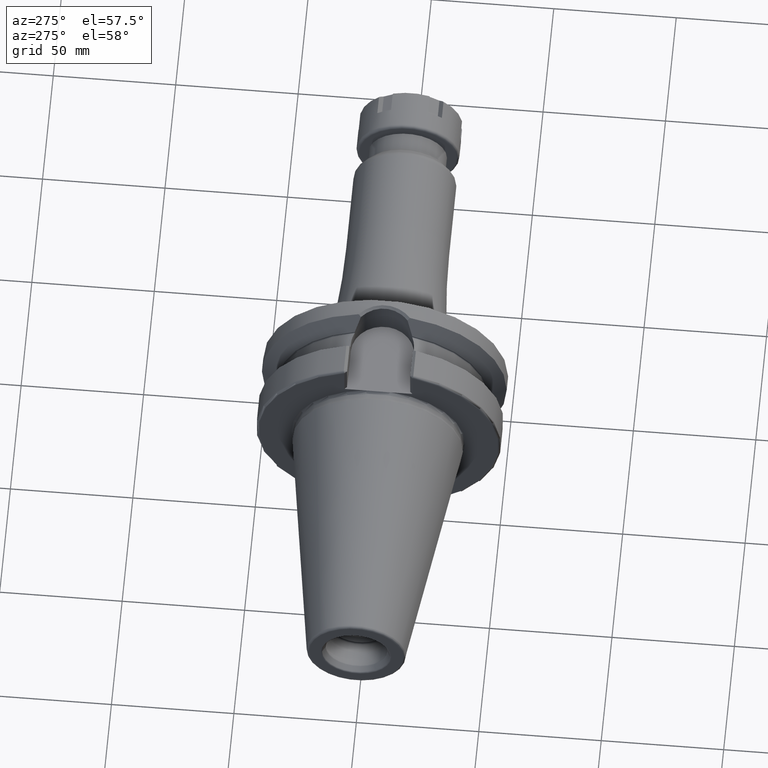
[diagram: clean part render]
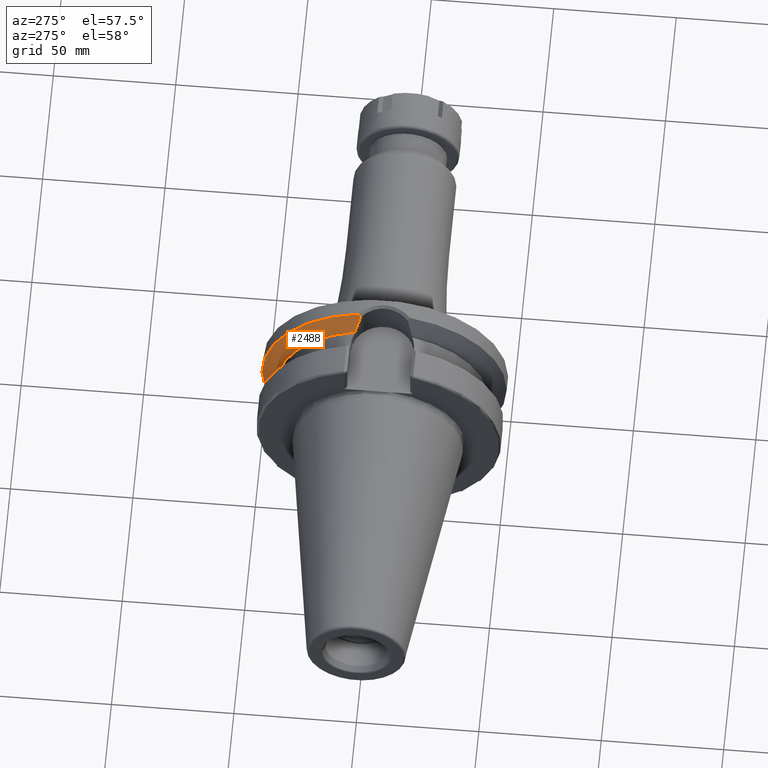
[diagram: same view with one face highlighted and labeled with its STEP entity id]
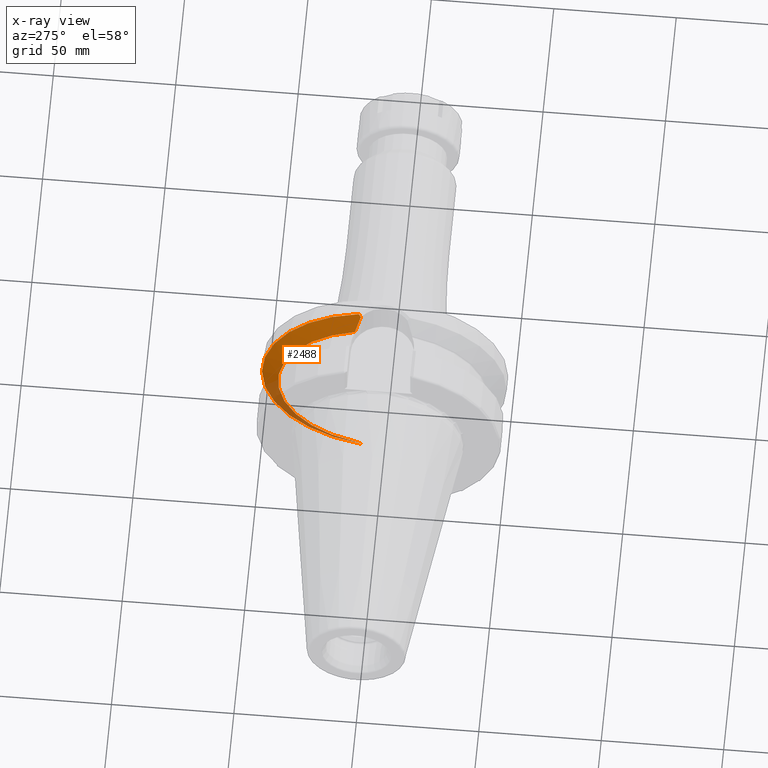
[diagram: x-ray of the same camera — body ghosted, the highlighted face saturated]
A machine part, auxiliary view. The second image highlights one B-rep face of the part: STEP entity #2488.
The next image is the same camera in x-ray: the body ghosted, the highlighted face saturated — about 19% of this face is hidden behind the body in this view.
In plain terms, the highlighted conical surface has half-angle 60 deg.
Its self-contained STEP definition (entity closure, byte-faithful):
#263=CARTESIAN_POINT('',(3.073066823617E1,0.E0,0.E0));
#264=DIRECTION('',(1.E0,0.E0,0.E0));
#265=DIRECTION('',(0.E0,2.049238320147E-1,-9.787779232657E-1));
#266=AXIS2_PLACEMENT_3D('',#263,#264,#265);
#415=CARTESIAN_POINT('',(2.67375E1,1.172273032403E1,-4.144514217760E1));
#416=CARTESIAN_POINT('',(2.717755273188E1,1.152039825981E1,-4.229446795287E1));
#417=CARTESIAN_POINT('',(2.801804260532E1,1.107404406164E1,-4.392046244152E1));
#418=CARTESIAN_POINT('',(2.916093120674E1,1.029757215552E1,-4.613906421021E1));
#419=CARTESIAN_POINT('',(2.984177307163E1,9.721843848552E0,-4.746425084782E1));
#420=CARTESIAN_POINT('',(3.016210355788E1,9.422169090361E0,-4.808834590435E1));
#485=CARTESIAN_POINT('',(3.006745596523E1,9.509830398822E0,4.790396451831E1));
#486=CARTESIAN_POINT('',(2.975376574683E1,9.797465906135E0,4.729293338983E1));
#487=CARTESIAN_POINT('',(2.908879078217E1,1.035010846105E1,4.599889189585E1));
#488=CARTESIAN_POINT('',(2.797778721927E1,1.109635283633E1,4.384252820130E1));
#489=CARTESIAN_POINT('',(2.716331106798E1,1.152694644153E1,4.226698076473E1));
#490=CARTESIAN_POINT('',(2.67375E1,1.172273032403E1,4.144514217760E1));
#758=CARTESIAN_POINT('',(2.67375E1,0.E0,0.E0));
#759=DIRECTION('',(-1.E0,0.E0,0.E0));
#760=DIRECTION('',(0.E0,2.721714149834E-1,9.622487832499E-1));
#761=AXIS2_PLACEMENT_3D('',#758,#759,#760);
#775=CARTESIAN_POINT('',(3.016210355788E1,9.422169090361E0,-4.808834590435E1));
#776=CARTESIAN_POINT('',(3.022394586618E1,9.512142137117E0,-4.817986780383E1));
#777=CARTESIAN_POINT('',(3.034851502566E1,9.692953240337E0,-4.836399151813E1));
#778=CARTESIAN_POINT('',(3.053803725886E1,9.966778365933E0,-4.864343348084E1));
#779=CARTESIAN_POINT('',(3.066616050581E1,1.015105667945E1,-4.883189001679E1));
#780=CARTESIAN_POINT('',(3.073066823617E1,1.024363005283E1,-4.892666143925E1));
#782=CARTESIAN_POINT('',(3.073066823617E1,0.E0,0.E0));
#783=DIRECTION('',(1.E0,0.E0,0.E0));
#784=DIRECTION('',(0.E0,1.E0,0.E0));
#785=AXIS2_PLACEMENT_3D('',#782,#783,#784);
#1024=CARTESIAN_POINT('',(3.073066823617E1,1.046765017837E1,4.887922315251E1));
#1025=CARTESIAN_POINT('',(3.065516473864E1,1.035946447073E1,4.876865040800E1));
#1026=CARTESIAN_POINT('',(3.050537106240E1,1.014427039488E1,4.854898287946E1));
#1027=CARTESIAN_POINT('',(3.028429900742E1,9.824990065200E0,4.822389090934E1));
#1028=CARTESIAN_POINT('',(3.013933640756E1,9.614493300520E0,4.801011711517E1));
#1029=CARTESIAN_POINT('',(3.006745596523E1,9.509830398822E0,4.790396451831E1));
#1284=CARTESIAN_POINT('',(2.67375E1,1.172273032403E1,4.144514217760E1));
#1285=CARTESIAN_POINT('',(2.67375E1,1.172273032403E1,-4.144514217760E1));
#1286=VERTEX_POINT('',#1284);
#1287=VERTEX_POINT('',#1285);
#1300=CARTESIAN_POINT('',(3.073066823617E1,4.99875E1,0.E0));
#1301=CARTESIAN_POINT('',(3.073066823617E1,1.046765017837E1,4.887922315251E1));
#1302=VERTEX_POINT('',#1300);
#1303=VERTEX_POINT('',#1301);
#1314=CARTESIAN_POINT('',(3.073066823617E1,1.024363005283E1,-4.892666143925E1));
#1315=VERTEX_POINT('',#1314);
#1405=VERTEX_POINT('',#485);
#1413=VERTEX_POINT('',#420);
#2471=CARTESIAN_POINT('',(2.873408411809E1,0.E0,0.E0));
#2472=DIRECTION('',(1.E0,0.E0,0.E0));
#2473=DIRECTION('',(0.E0,-1.E0,0.E0));
#2474=AXIS2_PLACEMENT_3D('',#2471,#2472,#2473);
#2475=CONICAL_SURFACE('',#2474,4.652931486589E1,6.E1);
#2476=ORIENTED_EDGE('',*,*,#1997,.T.);
#2477=ORIENTED_EDGE('',*,*,#1972,.T.);
#2479=ORIENTED_EDGE('',*,*,#2478,.T.);
#2480=ORIENTED_EDGE('',*,*,#1853,.T.);
#2482=ORIENTED_EDGE('',*,*,#2481,.T.);
#2484=ORIENTED_EDGE('',*,*,#2483,.T.);
#2485=ORIENTED_EDGE('',*,*,#2060,.T.);
#2486=EDGE_LOOP('',(#2476,#2477,#2479,#2480,#2482,#2484,#2485));
#2487=FACE_OUTER_BOUND('',#2486,.F.);
#2488=ADVANCED_FACE('',(#2487),#2475,.T.);
#267=CIRCLE('',#266,4.99875E1);
#421=B_SPLINE_CURVE_WITH_KNOTS('',3,(#415,#416,#417,#418,#419,#420),
.UNSPECIFIED.,.F.,.F.,(4,1,1,4),(0.E0,3.333333333333E-1,6.666666666667E-1,1.E0),
.UNSPECIFIED.);
#491=B_SPLINE_CURVE_WITH_KNOTS('',3,(#485,#486,#487,#488,#489,#490),
.UNSPECIFIED.,.F.,.F.,(4,1,1,4),(0.E0,3.333333333333E-1,6.666666666667E-1,1.E0),
.UNSPECIFIED.);
#762=CIRCLE('',#761,4.307112973177E1);
#781=B_SPLINE_CURVE_WITH_KNOTS('',3,(#775,#776,#777,#778,#779,#780),
.UNSPECIFIED.,.F.,.F.,(4,1,1,4),(0.E0,3.333333333333E-1,6.666666666667E-1,1.E0),
.UNSPECIFIED.);
#786=CIRCLE('',#785,4.99875E1);
#1030=B_SPLINE_CURVE_WITH_KNOTS('',3,(#1024,#1025,#1026,#1027,#1028,#1029),
.UNSPECIFIED.,.F.,.F.,(4,1,1,4),(0.E0,3.333333333333E-1,6.666666666667E-1,1.E0),
.UNSPECIFIED.);
#1853=EDGE_CURVE('',#1315,#1302,#267,.T.);
#1972=EDGE_CURVE('',#1287,#1413,#421,.T.);
#1997=EDGE_CURVE('',#1286,#1287,#762,.T.);
#2060=EDGE_CURVE('',#1405,#1286,#491,.T.);
#2478=EDGE_CURVE('',#1413,#1315,#781,.T.);
#2481=EDGE_CURVE('',#1302,#1303,#786,.T.);
#2483=EDGE_CURVE('',#1303,#1405,#1030,.T.);